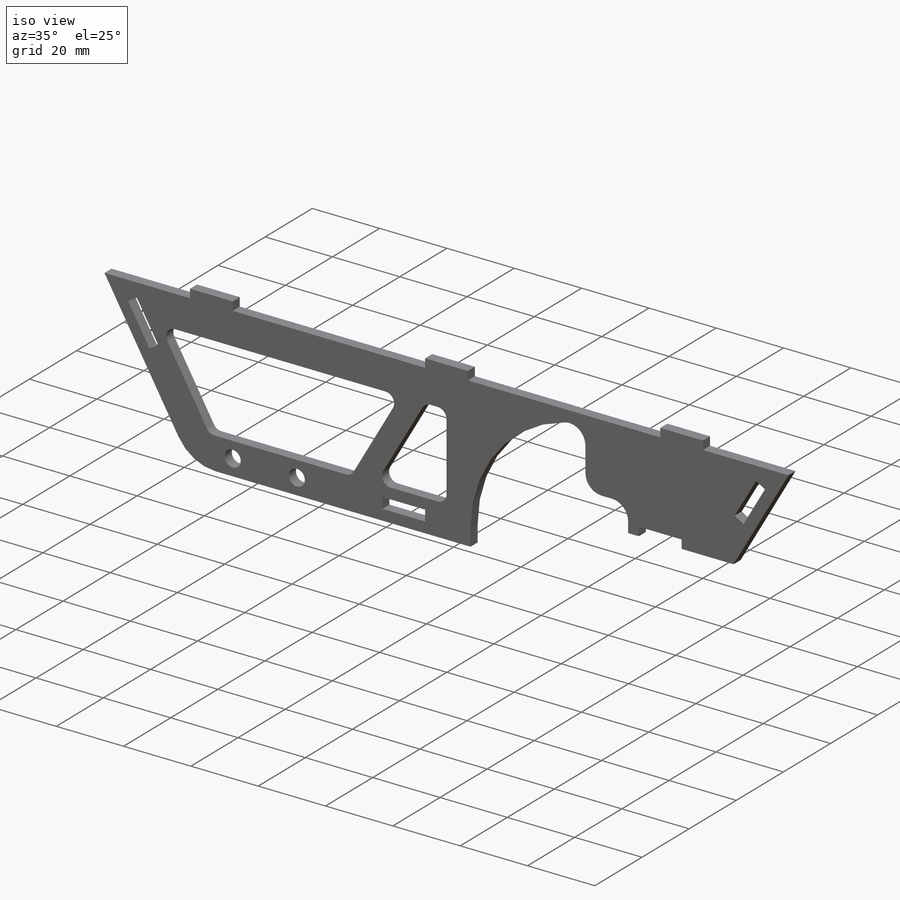
[diagram: iso view]
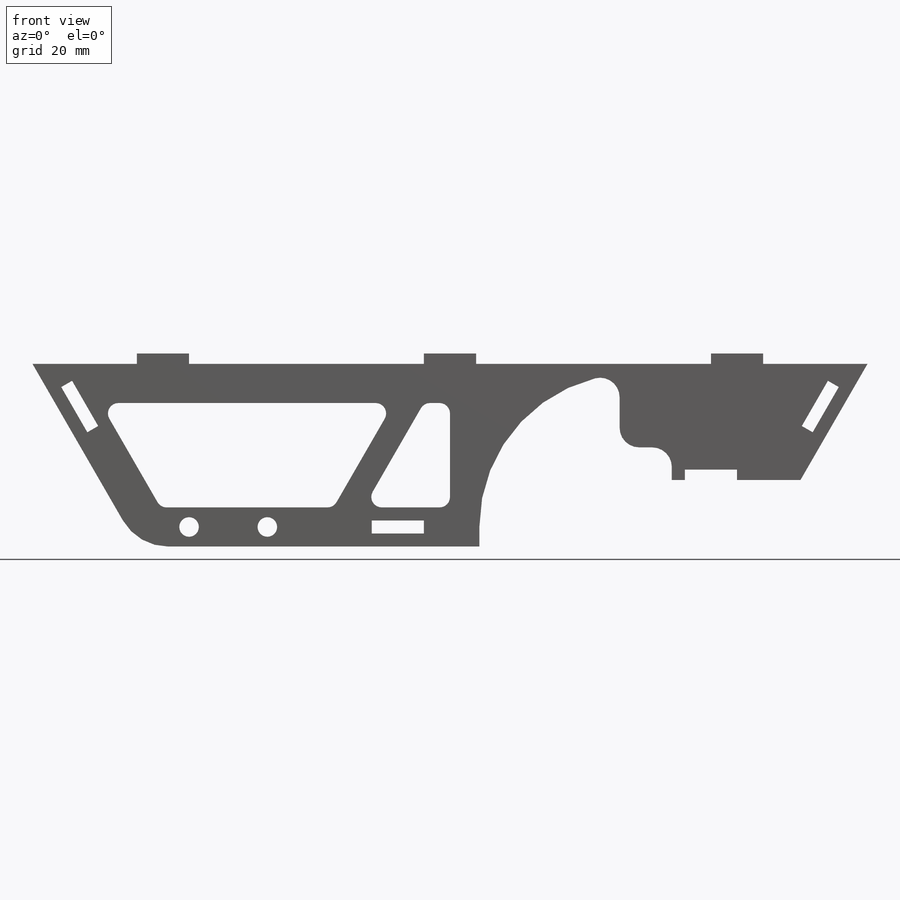
[diagram: front view]
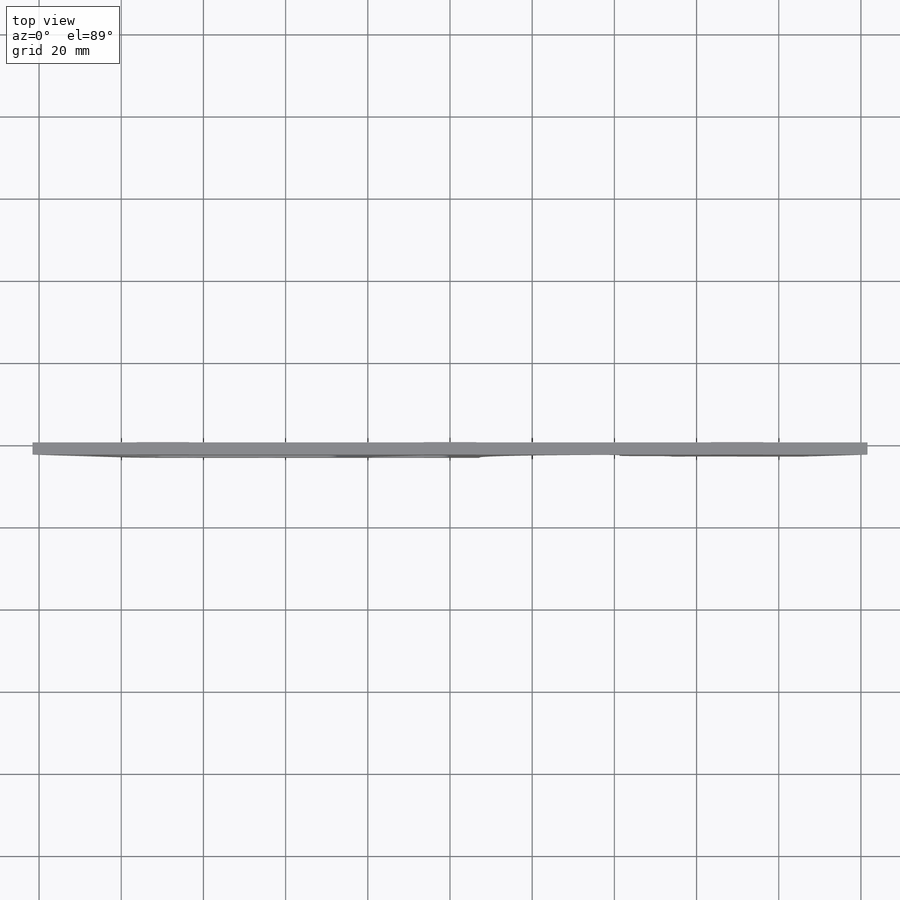
[diagram: top view]
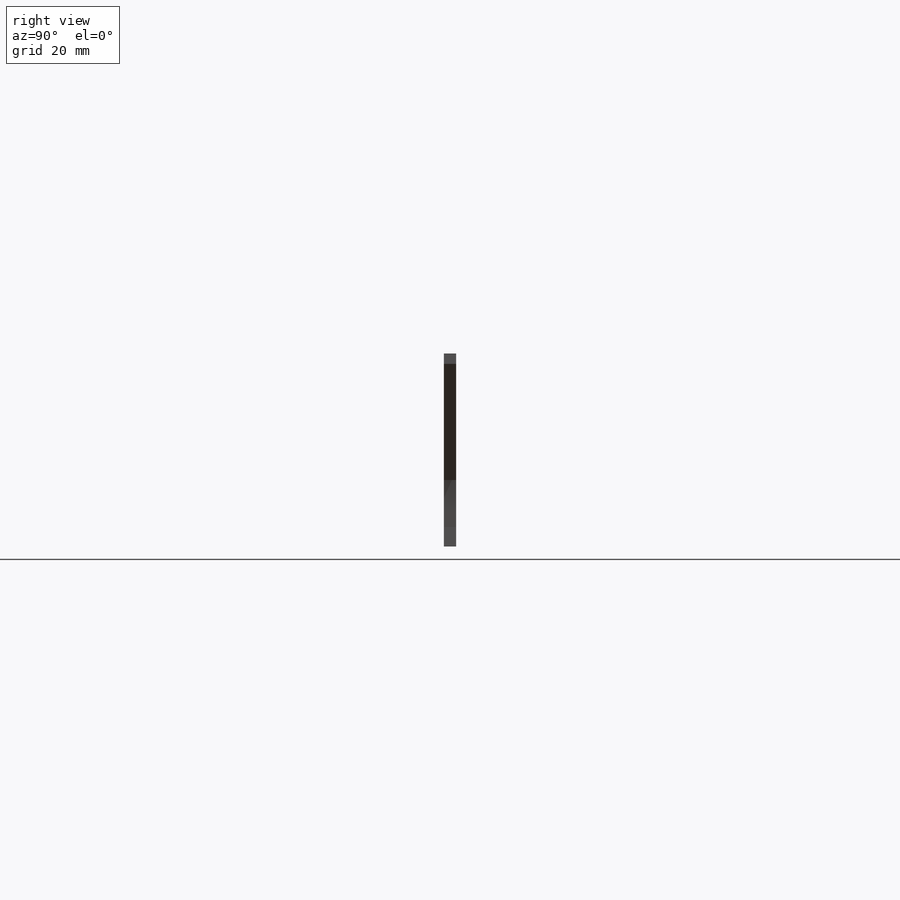
[diagram: right view]
SOLIDWORKS PART (.sldprt)
format: sldprt  version: not decoded by parser v0  size: 367,616 bytes
history: native  units: mm
features: sketch x5, cut_extrude x3, fillet x3, extrude x2, material x1 (+16 scaffold rows collapsed)
feature tree (30):
  scaffold x16  (default folders/planes/origin — collapsed)
  material  "Material <not specified>"
  sketch  "Sketch1"  dims[c1.D1=203.2mm c1.D2=44.45mm c1.D3=152.4mm c1.D8=~40.410093mm c2.D8=120.0deg c2.D3=38.1mm c3.D3=120.0deg c3.D9=6.35mm c3.D4=3.175mm c3.D5=3.175mm c3.D6=9.525mm c3.D7=9.525mm]
  extrude  "Extrude1"  Depth=2.9972mm
  sketch  "Sketch2"  dims[D1=12.7mm D2=2.54mm D3=63.5mm]
  extrude  "Tabs"  [1 undecoded]
  sketch  "Sketch3"  dims[c1.D1=3.175mm c1.D2=12.7mm c1.D3=12.7mm c1.D4=4.7625mm c1.D5=3.048mm c1.D6=28.575mm c1.D7=12.7mm c1.D8=63.5mm c1.D9=2.54mm c2.D8=76.2mm c2.D10=12.7mm c2.D11=12.7mm]
  cut_extrude  "Slots"  [1 undecoded]
  sketch  "Sketch4"  dims[c1.D2=~4.594643mm c1.D3=~4.594643mm c1.D4=4.7625mm c1.D1=4.7625mm c2.D2=19.05mm c2.D3=44.45mm]
  cut_extrude  "Holes"  [1 undecoded]
  sketch  "Sketch5"  dims[c1.D5=74.6125mm c1.D1=6.35mm c1.D2=22.225mm c1.D3=25.4mm c1.D4=9.525mm c2.D3=19.05mm c2.D4=~12.76108mm c2.D1=6.35mm c3.D4=19.05mm c3.D1=12.7mm c3.D6=7.9375mm]
  cut_extrude  "Wheel Clearance"  [1 undecoded]
  fillet  "Fillet1"  Radius=2.54mm
  fillet  "Fillet2"  Radius=4.7625mm
  fillet  "Fillet3"  Radius=12.7mm
decode coverage: 9 of 13 modeling features carry decoded parameters
note: ~ marks probable driven/reference dimensions
note: 4 parameter values undecoded
summary: no parameter record found for 4 features
note: suppression state not decoded; provenance and decode notes live in map.json
